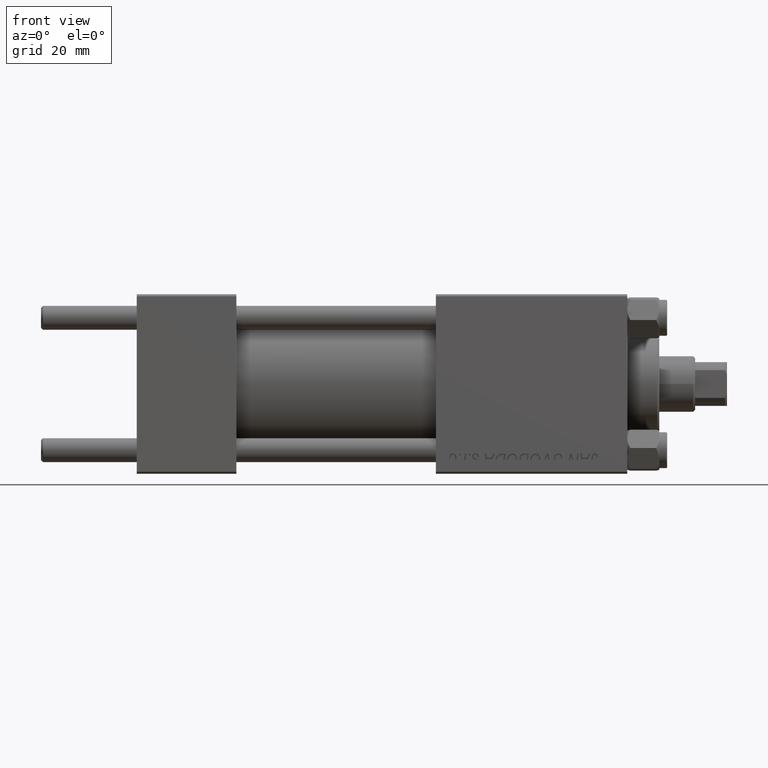
[diagram: clean part render]
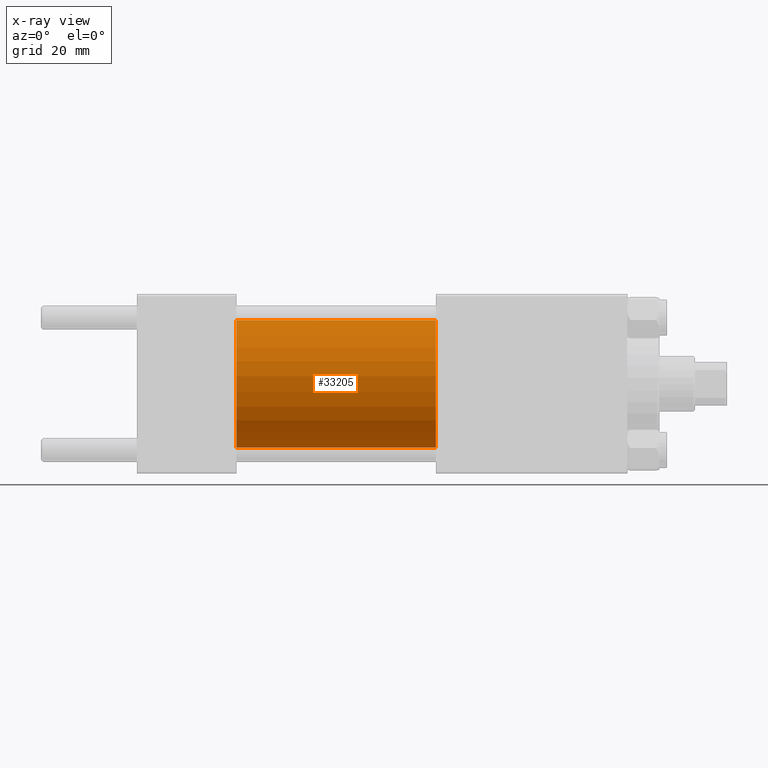
[diagram: x-ray — body ghosted, one internal face saturated and labeled with its STEP entity id]
A machine part, front view, then the same camera in x-ray: the body is ghosted and one INTERNAL B-rep face — a face not visible from any outside direction — is saturated and labeled: STEP entity #33205.
In plain terms, the highlighted cylindrical surface (partial cylindrical patch) has radius 16 mm, axis along (-1, -0, -0).
Its self-contained STEP definition (entity closure, byte-faithful):
#396 = VECTOR ( 'NONE', #41510, 1000.000000000000000 ) ;
#1717 = EDGE_CURVE ( 'NONE', #5325, #38712, #25761, .T. ) ;
#1865 = VECTOR ( 'NONE', #10323, 1000.000000000000000 ) ;
#5325 = VERTEX_POINT ( 'NONE', #17385 ) ;
#6602 = AXIS2_PLACEMENT_3D ( 'NONE', #47257, #12576, #28021 ) ;
#7218 = CARTESIAN_POINT ( 'NONE',  ( 25.00000000000000000, 1.959434878635765131E-15, -16.00000000000000000 ) ) ;
#7585 = CARTESIAN_POINT ( 'NONE',  ( 75.00000000000001421, 1.959434878635765131E-15, -16.00000000000000000 ) ) ;
#8036 = FACE_OUTER_BOUND ( 'NONE', #8515, .T. ) ;
#8515 = EDGE_LOOP ( 'NONE', ( #33539, #35764, #38669, #41422 ) ) ;
#10323 = DIRECTION ( 'NONE',  ( -1.000000000000000000, -0.000000000000000000, -0.000000000000000000 ) ) ;
#10432 = CIRCLE ( 'NONE', #45989, 16.00000000000000000 ) ;
#11823 = CYLINDRICAL_SURFACE ( 'NONE', #6602, 16.00000000000000000 ) ;
#12095 = CIRCLE ( 'NONE', #20211, 16.00000000000000000 ) ;
#12576 = DIRECTION ( 'NONE',  ( -1.000000000000000000, -0.000000000000000000, -0.000000000000000000 ) ) ;
#13184 = EDGE_CURVE ( 'NONE', #47239, #35842, #49127, .T. ) ;
#15942 = DIRECTION ( 'NONE',  ( 1.000000000000000000, 0.000000000000000000, 0.000000000000000000 ) ) ;
#17385 = CARTESIAN_POINT ( 'NONE',  ( 75.00000000000001421, 0.000000000000000000, 16.00000000000000000 ) ) ;
#18521 = CARTESIAN_POINT ( 'NONE',  ( 75.00000000000001421, 0.000000000000000000, 0.000000000000000000 ) ) ;
#18767 = DIRECTION ( 'NONE',  ( 0.000000000000000000, 0.000000000000000000, -1.000000000000000000 ) ) ;
#20211 = AXIS2_PLACEMENT_3D ( 'NONE', #18521, #30396, #18767 ) ;
#20526 = DIRECTION ( 'NONE',  ( 0.000000000000000000, 0.000000000000000000, -1.000000000000000000 ) ) ;
#25761 = LINE ( 'NONE', #41177, #1865 ) ;
#27122 = EDGE_CURVE ( 'NONE', #38712, #35842, #10432, .T. ) ;
#27594 = CARTESIAN_POINT ( 'NONE',  ( 25.00000000000000000, 0.000000000000000000, 0.000000000000000000 ) ) ;
#28021 = DIRECTION ( 'NONE',  ( 0.000000000000000000, 0.000000000000000000, 1.000000000000000000 ) ) ;
#29477 = EDGE_CURVE ( 'NONE', #5325, #47239, #12095, .T. ) ;
#30396 = DIRECTION ( 'NONE',  ( 1.000000000000000000, 0.000000000000000000, 0.000000000000000000 ) ) ;
#33205 = ADVANCED_FACE ( 'NONE', ( #8036 ), #11823, .F. ) ;
#33539 = ORIENTED_EDGE ( 'NONE', *, *, #29477, .T. ) ;
#34972 = CARTESIAN_POINT ( 'NONE',  ( 75.00000000000001421, 1.959434878635765131E-15, -16.00000000000000000 ) ) ;
#35764 = ORIENTED_EDGE ( 'NONE', *, *, #13184, .T. ) ;
#35842 = VERTEX_POINT ( 'NONE', #7218 ) ;
#38669 = ORIENTED_EDGE ( 'NONE', *, *, #27122, .F. ) ;
#38712 = VERTEX_POINT ( 'NONE', #43497 ) ;
#41177 = CARTESIAN_POINT ( 'NONE',  ( 75.00000000000001421, 0.000000000000000000, 16.00000000000000000 ) ) ;
#41422 = ORIENTED_EDGE ( 'NONE', *, *, #1717, .F. ) ;
#41510 = DIRECTION ( 'NONE',  ( -1.000000000000000000, -0.000000000000000000, -0.000000000000000000 ) ) ;
#43497 = CARTESIAN_POINT ( 'NONE',  ( 25.00000000000000000, 0.000000000000000000, 16.00000000000000000 ) ) ;
#45989 = AXIS2_PLACEMENT_3D ( 'NONE', #27594, #15942, #20526 ) ;
#47239 = VERTEX_POINT ( 'NONE', #34972 ) ;
#47257 = CARTESIAN_POINT ( 'NONE',  ( 75.00000000000001421, 0.000000000000000000, 0.000000000000000000 ) ) ;
#49127 = LINE ( 'NONE', #7585, #396 ) ;